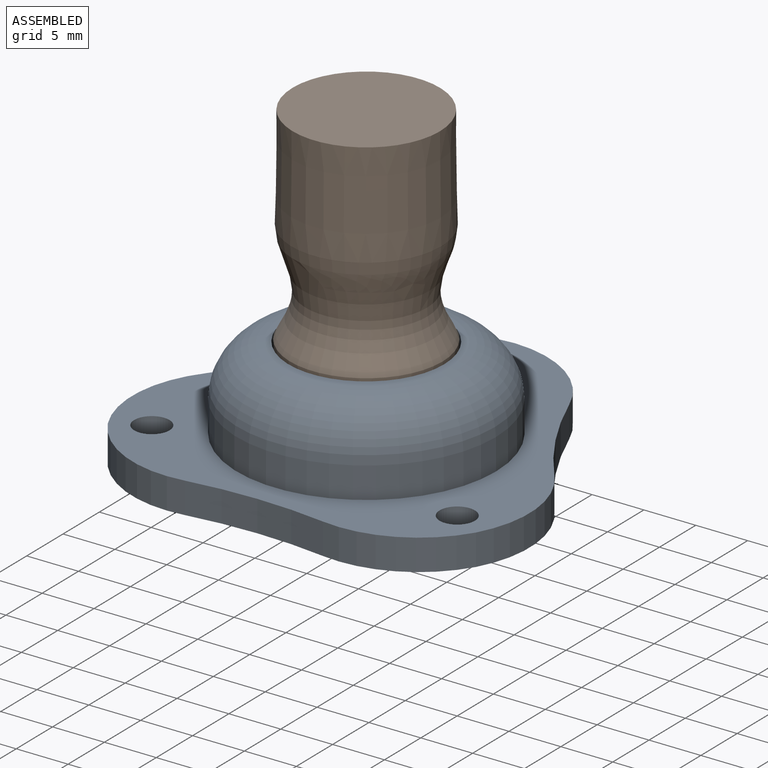
[diagram: assembled view]
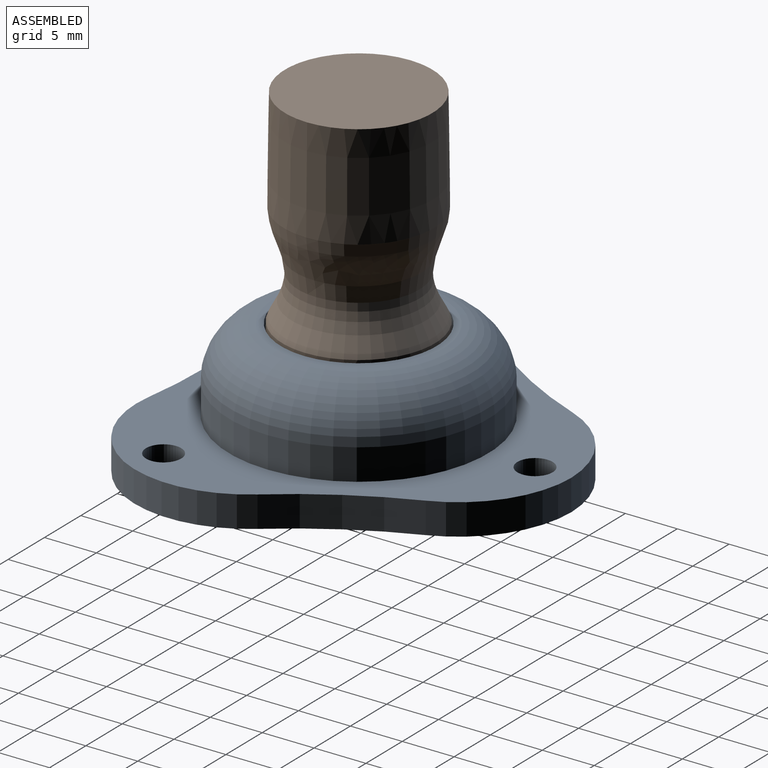
[diagram: assembled view, second angle]
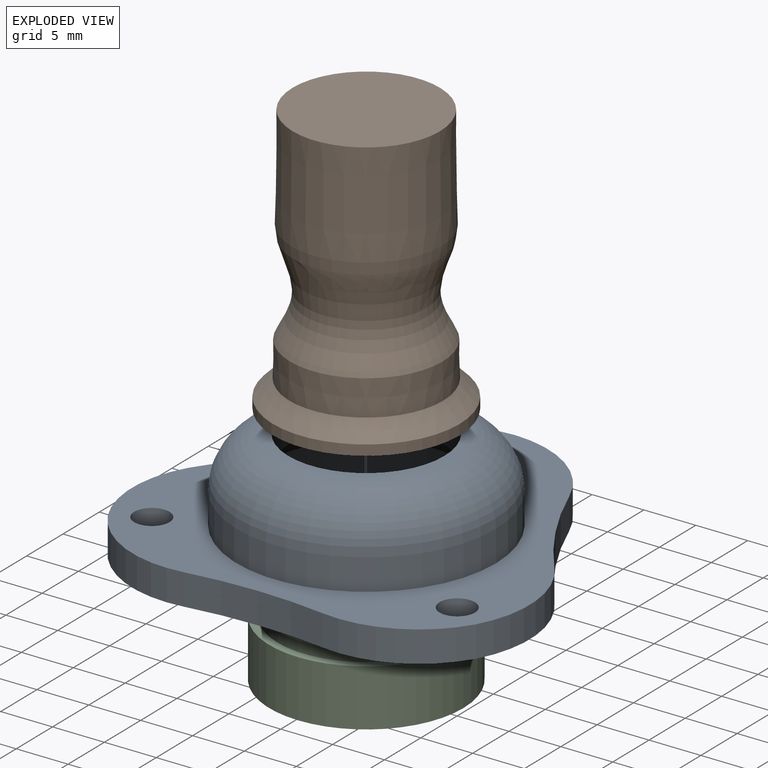
[diagram: exploded view]
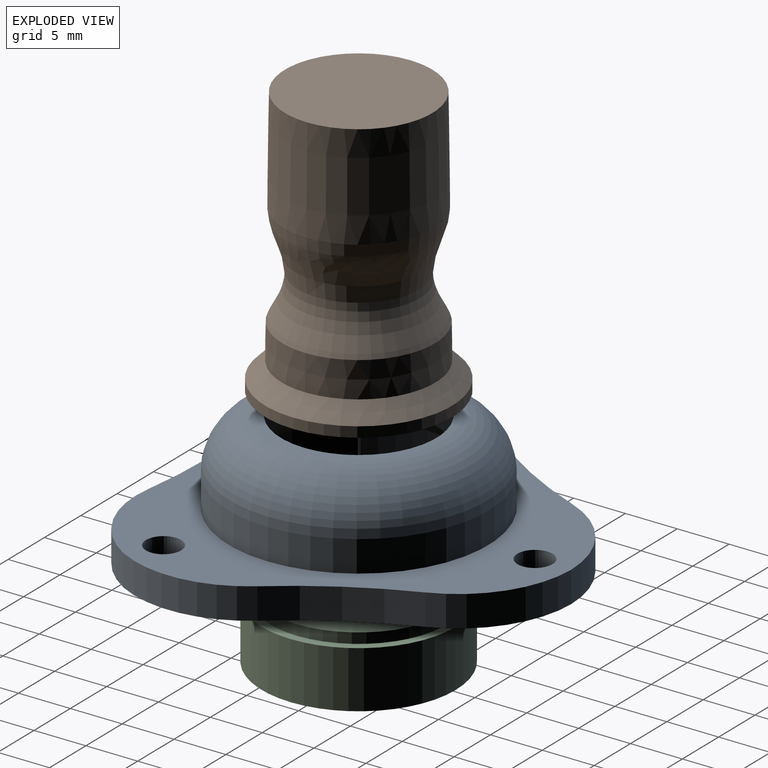
[diagram: exploded view, second angle]
ASSEMBLY  parts=3 mates=2
PART A: 19 faces, bbox 38.3x36.1x11 mm
  f0: plane 38.3x36.12mm, normal (0,0,-1), area 699.5mm2, adj f1,f7,f8,f9,f10,f11,f12,f13
  f1: cylinder r=9.5mm len=19mm, axis (0,0,-1), area 358.1mm2, adj f0,f2
  f2: cone r=7.5mm half-angle=45deg, axis (0,0,-1), area 151.1mm2, adj f1,f3
  f3: cylinder r=7.5mm len=15mm, axis (0,0,-1), area 141.4mm2, adj f2,f4
  f4: torus R=7.5mm, axis (0,0,-1), area 527.2mm2, adj f3,f5
  f5: cylinder r=12.5mm len=25mm, axis (0,0,-1), area 235.6mm2, adj f4,f6
  f6: plane 38.3x36.12mm, normal (0,0,1), area 492.2mm2, adj f5,f7,f8,f9,f10,f11,f12,f13
  f7: cylinder r=1.7mm len=3.4mm, axis (0,0,1), area 32mm2, adj f0,f6
  f8: cylinder r=1.7mm len=3.4mm, axis (0,0,1), area 32mm2, adj f0,f6
  f9: cylinder r=1.7mm len=3.4mm, axis (0,0,1), area 32mm2, adj f0,f6
  f10: cylinder r=45mm len=11.55mm, axis (0,0,1), area 40.2mm2, adj f0,f6,f14,f16
  f11: cylinder r=45mm len=11.55mm, axis (0,0,1), area 40.2mm2, adj f0,f6,f15,f17
  f12: cylinder r=45mm len=13.34mm, axis (0,0,1), area 40.2mm2, adj f0,f6,f13,f18
  f13: cylinder r=11mm len=11.08mm, axis (0,0,-1), area 39mm2, adj f0,f6,f12,f14
  f14: cylinder r=11mm len=12.22mm, axis (0,0,-1), area 39mm2, adj f0,f6,f10,f13
  f15: cylinder r=11mm len=10.09mm, axis (0,0,-1), area 39mm2, adj f0,f6,f11,f16
  f16: cylinder r=11mm len=10.09mm, axis (0,0,-1), area 39mm2, adj f0,f6,f10,f15
  f17: cylinder r=11mm len=12.22mm, axis (0,0,-1), area 39mm2, adj f0,f6,f11,f18
  f18: cylinder r=11mm len=11.08mm, axis (0,0,-1), area 39mm2, adj f0,f6,f12,f17
PART B: 15 faces, bbox 18x18x26 mm
  f0: cylinder r=8.6mm len=17.2mm, axis (0,0,-1), area 45.1mm2, adj f1,f14
  f1: cone r=8.6mm half-angle=45deg, axis (0,0,1), area 110.9mm2, adj f0,f2
  f2: cone r=7mm half-angle=0.7deg, axis (0,0,1), area 156.3mm2, adj f1,f3
  f3: revolved ~13.91x13.91mm, area 400.6mm2, adj f2,f4
  f4: cone r=6.82mm half-angle=0.7deg, axis (0,0,1), area 399.4mm2, adj f3,f5
  f5: plane 13.4x13.4mm, normal (0,0,1), area 141mm2, adj f4
  f6: plane 14.2x14.2mm, normal (0,0,-1), area 158.4mm2, adj f7
  f7: cone r=7.23mm half-angle=0.7deg, axis (0,0,1), area 450.2mm2, adj f6,f8
  f8: cone r=7.22mm half-angle=15.6deg, axis (0,0,-1), area 1mm2, adj f7,f9
  f9: revolved ~14.44x14.44mm, area 405.2mm2, adj f8,f10
  f10: revolved ~14.71x14.71mm, area 21.7mm2, adj f9,f11
  f11: cone r=7.4mm half-angle=0.7deg, axis (0,0,1), area 157.9mm2, adj f10,f12
  f12: cone r=9mm half-angle=45deg, axis (0,0,1), area 116.6mm2, adj f11,f13
  f13: cylinder r=9mm len=18mm, axis (0,0,-1), area 56.5mm2, adj f12,f14
  f14: plane 18x18mm, normal (0,0,1), area 22.1mm2, adj f0,f13
PART C: 7 faces, bbox 18.7x18.7x8.5 mm
  f0: cylinder r=4.6mm len=9.2mm, axis (0,0,-1), area 245.7mm2, adj f2,f5
  f1: cylinder r=9.35mm len=18.7mm, axis (0,0,-1), area 323.1mm2, adj f2,f3
  f2: plane 18.7x18.7mm, normal (0,0,1), area 208.2mm2, adj f0,f1
  f3: plane 18.7x18.7mm, normal (0,0,-1), area 45mm2, adj f1,f4
  f4: cylinder r=8.55mm len=17.1mm, axis (0,0,1), area 53.7mm2, adj f3,f6
  f5: plane 13.1x13.1mm, normal (0,0,-1), area 68.3mm2, adj f0,f6
  f6: cone r=6.55mm half-angle=45deg, axis (0,0,1), area 134.2mm2, adj f4,f5
PLACE A t=(0.6,-35.22,7.94)mm fixed
PLACE B rot(axis=(0,1,0),180deg) t=(121.4,-35.22,39.14)mm
PLACE C rot(axis=(0,1,0),180deg) t=(18.08,-35.22,12.78)mm
MATE pin_slot B.f0 <-> C.f0  axis (0,0,-1) through (81.4,-35.22,14.78)mm
MATE planar B.f0 <-> A.f1  axis (0,0,-1) through (81.4,-35.22,14.94)mm
